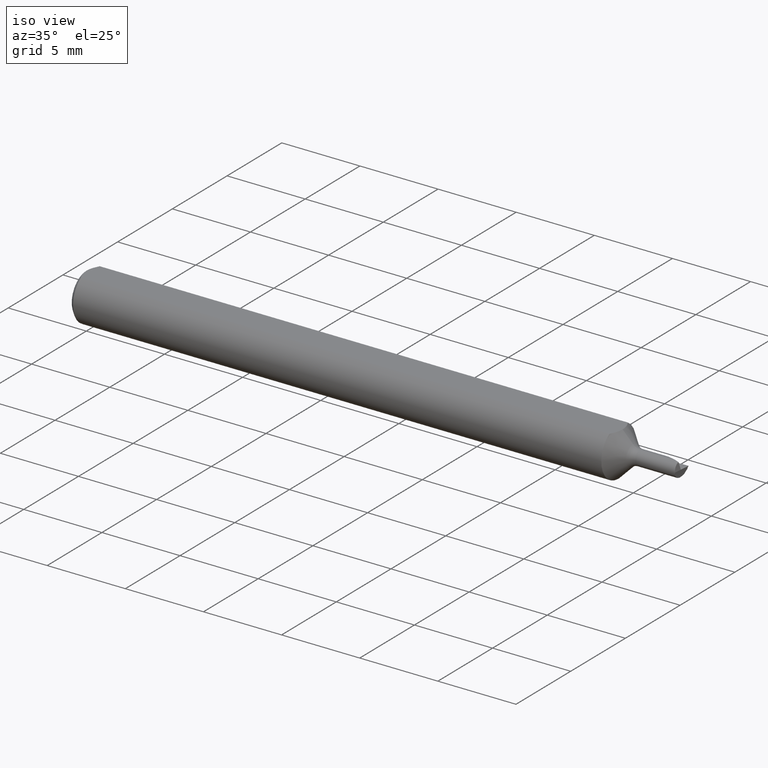
[diagram: clean part render]
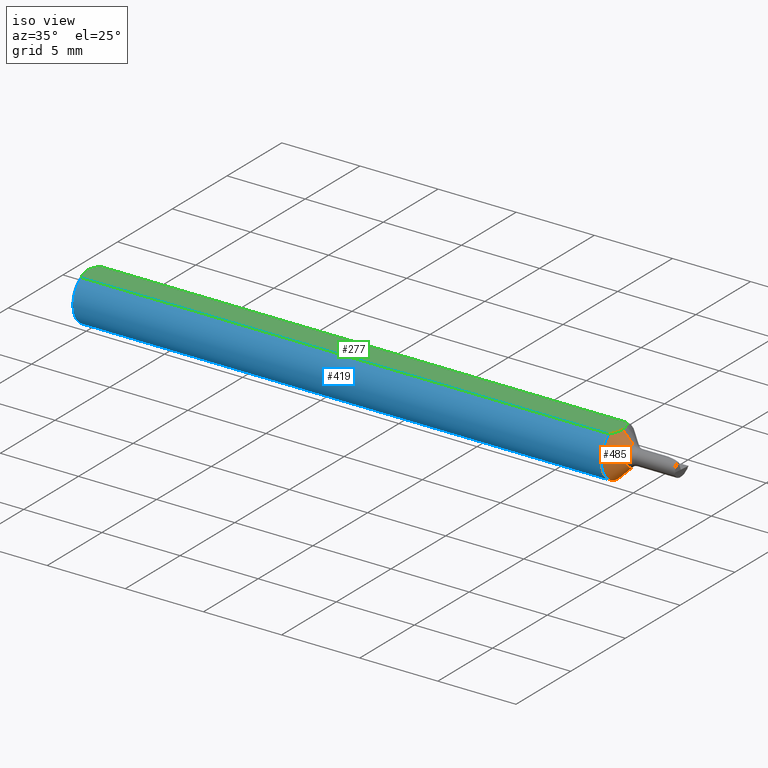
[diagram: same view with three faces highlighted in distinct colors, each labeled with its STEP entity id]
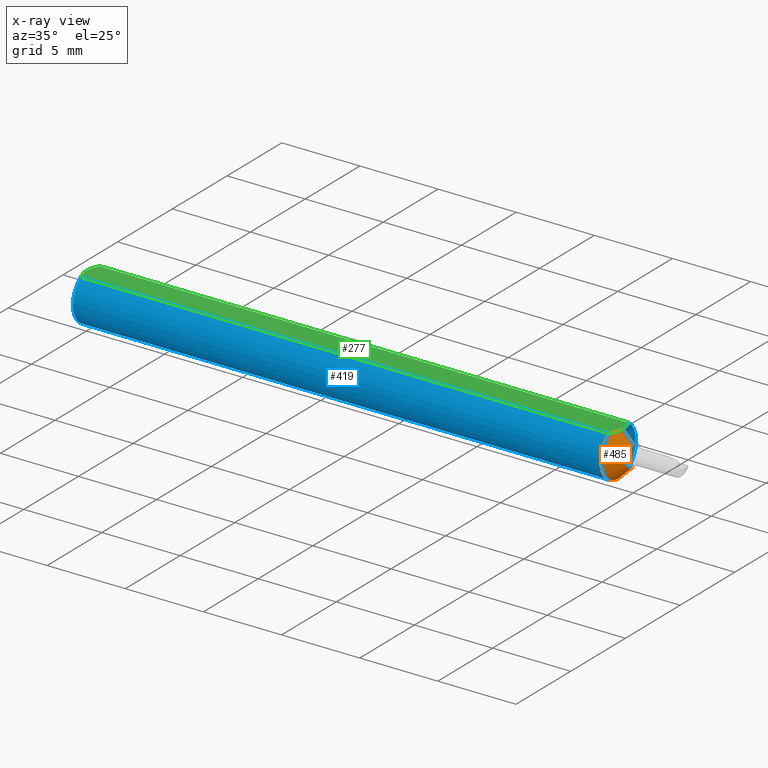
[diagram: x-ray of the same camera — body ghosted, the three highlighted faces saturated]
A machine part, iso view with three faces highlighted in distinct colors.
The next image is the same camera in x-ray (body ghosted, the three faces saturated) — at least one of them is partly hidden behind the body in this view.
Their STEP definitions:

[orange] entity #485 — the highlighted conical surface has half-angle 45 deg.
#26 = EDGE_CURVE ( 'NONE', #545, #393, #606, .T. ) ;
#39 = DIRECTION ( 'NONE',  ( 0.000000000000000000, 0.000000000000000000, 1.000000000000000000 ) ) ;
#40 = EDGE_CURVE ( 'NONE', #224, #44, #548, .T. ) ;
#44 = VERTEX_POINT ( 'NONE', #354 ) ;
#53 = DIRECTION ( 'NONE',  ( -1.000000000000000000, -0.000000000000000000, -0.000000000000000000 ) ) ;
#55 = CARTESIAN_POINT ( 'NONE',  ( 1.351150000000000073, -1.477724559795570125E-21, 0.05235000000000001458 ) ) ;
#65 = DIRECTION ( 'NONE',  ( 0.000000000000000000, 0.000000000000000000, 1.000000000000000000 ) ) ;
#69 = DIRECTION ( 'NONE',  ( -1.000000000000000000, -0.000000000000000000, -0.000000000000000000 ) ) ;
#73 = CONICAL_SURFACE ( 'NONE', #239, 0.02582233047033637499, 0.7853981633974507215 ) ;
#83 = EDGE_CURVE ( 'NONE', #224, #545, #436, .T. ) ;
#84 = CARTESIAN_POINT ( 'NONE',  ( 1.377677669529663751, 0.000000000000000000, 0.02582233047033637152 ) ) ;
#113 = ORIENTED_EDGE ( 'NONE', *, *, #488, .T. ) ;
#139 = AXIS2_PLACEMENT_3D ( 'NONE', #278, #480, #39 ) ;
#154 = CARTESIAN_POINT ( 'NONE',  ( 1.350078879331740422, -0.01191647624495715749, 0.05235000000000002152 ) ) ;
#158 = DIRECTION ( 'NONE',  ( -0.7071067811865457964, 8.659560562354953812E-17, -0.7071067811865492381 ) ) ;
#166 = CARTESIAN_POINT ( 'NONE',  ( 1.377677669529663751, 3.162323435702260084E-18, -0.02582233047033637152 ) ) ;
#178 = ORIENTED_EDGE ( 'NONE', *, *, #40, .F. ) ;
#189 = ORIENTED_EDGE ( 'NONE', *, *, #83, .T. ) ;
#207 = VECTOR ( 'NONE', #345, 39.37007874015748143 ) ;
#214 = DIRECTION ( 'NONE',  ( 0.000000000000000000, 0.000000000000000000, 1.000000000000000000 ) ) ;
#224 = VERTEX_POINT ( 'NONE', #166 ) ;
#239 = AXIS2_PLACEMENT_3D ( 'NONE', #513, #53, #65 ) ;
#250 = CARTESIAN_POINT ( 'NONE',  ( 1.344001488371463049, -0.02861778674340261300, 0.05235000000000002152 ) ) ;
#257 = CARTESIAN_POINT ( 'NONE',  ( 1.351150000000000073, -1.477724559795570125E-21, 0.05235000000000001458 ) ) ;
#278 = CARTESIAN_POINT ( 'NONE',  ( 1.341150000000000286, 0.000000000000000000, 0.000000000000000000 ) ) ;
#285 = VECTOR ( 'NONE', #158, 39.37007874015748143 ) ;
#288 = B_SPLINE_CURVE_WITH_KNOTS ( 'NONE', 3,
 ( #257, #457, #154, #503, #250, #451 ),
 .UNSPECIFIED., .F., .F.,
 ( 4, 2, 4 ),
 ( 0.002916663230282859516, 0.003365861382119317465, 0.003815059533955774979 ),
 .UNSPECIFIED. ) ;
#298 = CARTESIAN_POINT ( 'NONE',  ( 1.377677669529663751, 3.162323435702260854E-18, -0.02582233047033637499 ) ) ;
#345 = DIRECTION ( 'NONE',  ( -0.7071067811865457964, 0.000000000000000000, 0.7071067811865492381 ) ) ;
#346 = EDGE_CURVE ( 'NONE', #44, #378, #417, .T. ) ;
#354 = CARTESIAN_POINT ( 'NONE',  ( 1.341150000000000286, 7.635672792683746671E-18, -0.06235000000000000264 ) ) ;
#373 = AXIS2_PLACEMENT_3D ( 'NONE', #619, #69, #214 ) ;
#378 = VERTEX_POINT ( 'NONE', #551 ) ;
#393 = VERTEX_POINT ( 'NONE', #55 ) ;
#399 = FACE_OUTER_BOUND ( 'NONE', #537, .T. ) ;
#417 = CIRCLE ( 'NONE', #139, 0.06235000000000000264 ) ;
#436 = CIRCLE ( 'NONE', #373, 0.02582233047033637499 ) ;
#451 = CARTESIAN_POINT ( 'NONE',  ( 1.341150000000000286, -0.03386738844375220686, 0.05235000000000000070 ) ) ;
#457 = CARTESIAN_POINT ( 'NONE',  ( 1.351150000000000073, -0.005924734429433297159, 0.05235000000000002152 ) ) ;
#480 = DIRECTION ( 'NONE',  ( -1.000000000000000000, -0.000000000000000000, -0.000000000000000000 ) ) ;
#485 = ADVANCED_FACE ( 'NONE', ( #399 ), #73, .T. ) ;
#488 = EDGE_CURVE ( 'NONE', #393, #378, #288, .T. ) ;
#496 = CARTESIAN_POINT ( 'NONE',  ( 1.377677669529663751, 0.000000000000000000, 0.02582233047033637499 ) ) ;
#503 = CARTESIAN_POINT ( 'NONE',  ( 1.346482645487523833, -0.02321992653401851181, 0.05235000000000001458 ) ) ;
#513 = CARTESIAN_POINT ( 'NONE',  ( 1.377677669529663751, 0.000000000000000000, 0.000000000000000000 ) ) ;
#537 = EDGE_LOOP ( 'NONE', ( #178, #189, #594, #113, #547 ) ) ;
#545 = VERTEX_POINT ( 'NONE', #84 ) ;
#547 = ORIENTED_EDGE ( 'NONE', *, *, #346, .F. ) ;
#548 = LINE ( 'NONE', #298, #285 ) ;
#551 = CARTESIAN_POINT ( 'NONE',  ( 1.341150000000000286, -0.03386738844375220686, 0.05235000000000000070 ) ) ;
#594 = ORIENTED_EDGE ( 'NONE', *, *, #26, .T. ) ;
#606 = LINE ( 'NONE', #496, #207 ) ;
#619 = CARTESIAN_POINT ( 'NONE',  ( 1.377677669529663751, 0.000000000000000000, 0.000000000000000000 ) ) ;

[blue] entity #419 — the highlighted cylindrical surface (edge-blend (fillet) strip) has radius 1.5837 mm, axis along (-1, -0, -0).
#16 = CARTESIAN_POINT ( 'NONE',  ( 0.01000000000000853331, -0.03386738844395138087, 0.05235000000000001458 ) ) ;
#39 = DIRECTION ( 'NONE',  ( 0.000000000000000000, 0.000000000000000000, 1.000000000000000000 ) ) ;
#42 = AXIS2_PLACEMENT_3D ( 'NONE', #260, #456, #460 ) ;
#44 = VERTEX_POINT ( 'NONE', #354 ) ;
#46 = VERTEX_POINT ( 'NONE', #116 ) ;
#50 = CYLINDRICAL_SURFACE ( 'NONE', #434, 0.06235000000000000264 ) ;
#56 = EDGE_CURVE ( 'NONE', #160, #46, #264, .T. ) ;
#72 = ORIENTED_EDGE ( 'NONE', *, *, #109, .T. ) ;
#74 = AXIS2_PLACEMENT_3D ( 'NONE', #446, #197, #370 ) ;
#79 = VERTEX_POINT ( 'NONE', #170 ) ;
#88 = AXIS2_PLACEMENT_3D ( 'NONE', #566, #131, #266 ) ;
#89 = CARTESIAN_POINT ( 'NONE',  ( 1.341150000000000286, 0.03386738844375220686, 0.05235000000000000070 ) ) ;
#109 = EDGE_CURVE ( 'NONE', #327, #44, #415, .T. ) ;
#111 = DIRECTION ( 'NONE',  ( -1.000000000000000000, -0.000000000000000000, -0.000000000000000000 ) ) ;
#116 = CARTESIAN_POINT ( 'NONE',  ( 0.01000000000000001582, 0.000000000000000000, -0.06235000000000000264 ) ) ;
#131 = DIRECTION ( 'NONE',  ( -1.000000000000000000, -0.000000000000000000, -0.000000000000000000 ) ) ;
#139 = AXIS2_PLACEMENT_3D ( 'NONE', #278, #480, #39 ) ;
#145 = CARTESIAN_POINT ( 'NONE',  ( 0.000000000000000000, 0.000000000000000000, 0.000000000000000000 ) ) ;
#160 = VERTEX_POINT ( 'NONE', #16 ) ;
#162 = EDGE_CURVE ( 'NONE', #46, #79, #297, .T. ) ;
#170 = CARTESIAN_POINT ( 'NONE',  ( 0.01000000000000001929, 0.03386738844375217911, 0.05235000000000001458 ) ) ;
#197 = DIRECTION ( 'NONE',  ( 1.000000000000000000, 0.000000000000000000, 0.000000000000000000 ) ) ;
#208 = EDGE_CURVE ( 'NONE', #79, #327, #258, .T. ) ;
#212 = CARTESIAN_POINT ( 'NONE',  ( 0.000000000000000000, 0.03386738844375220686, 0.05235000000000000070 ) ) ;
#227 = EDGE_CURVE ( 'NONE', #378, #160, #517, .T. ) ;
#258 = LINE ( 'NONE', #212, #448 ) ;
#260 = CARTESIAN_POINT ( 'NONE',  ( 0.01000000000000001582, 0.000000000000000000, 0.000000000000000000 ) ) ;
#264 = CIRCLE ( 'NONE', #74, 0.06235000000000000264 ) ;
#266 = DIRECTION ( 'NONE',  ( 0.000000000000000000, 0.000000000000000000, 1.000000000000000000 ) ) ;
#278 = CARTESIAN_POINT ( 'NONE',  ( 1.341150000000000286, 0.000000000000000000, 0.000000000000000000 ) ) ;
#297 = CIRCLE ( 'NONE', #42, 0.06235000000000000264 ) ;
#302 = EDGE_LOOP ( 'NONE', ( #72, #478, #633, #543, #641, #576 ) ) ;
#327 = VERTEX_POINT ( 'NONE', #89 ) ;
#346 = EDGE_CURVE ( 'NONE', #44, #378, #417, .T. ) ;
#354 = CARTESIAN_POINT ( 'NONE',  ( 1.341150000000000286, 7.635672792683746671E-18, -0.06235000000000000264 ) ) ;
#366 = CARTESIAN_POINT ( 'NONE',  ( 0.000000000000000000, -0.03386738844375220686, 0.05235000000000000070 ) ) ;
#370 = DIRECTION ( 'NONE',  ( 0.000000000000000000, 0.000000000000000000, -1.000000000000000000 ) ) ;
#378 = VERTEX_POINT ( 'NONE', #551 ) ;
#415 = CIRCLE ( 'NONE', #88, 0.06235000000000000264 ) ;
#417 = CIRCLE ( 'NONE', #139, 0.06235000000000000264 ) ;
#419 = ADVANCED_FACE ( 'NONE', ( #645 ), #50, .T. ) ;
#433 = DIRECTION ( 'NONE',  ( -1.000000000000000000, -0.000000000000000000, -0.000000000000000000 ) ) ;
#434 = AXIS2_PLACEMENT_3D ( 'NONE', #145, #111, #491 ) ;
#446 = CARTESIAN_POINT ( 'NONE',  ( 0.01000000000000001582, 0.000000000000000000, 0.000000000000000000 ) ) ;
#448 = VECTOR ( 'NONE', #612, 39.37007874015748143 ) ;
#456 = DIRECTION ( 'NONE',  ( 1.000000000000000000, 0.000000000000000000, 0.000000000000000000 ) ) ;
#460 = DIRECTION ( 'NONE',  ( 0.000000000000000000, 0.000000000000000000, -1.000000000000000000 ) ) ;
#478 = ORIENTED_EDGE ( 'NONE', *, *, #346, .T. ) ;
#480 = DIRECTION ( 'NONE',  ( -1.000000000000000000, -0.000000000000000000, -0.000000000000000000 ) ) ;
#491 = DIRECTION ( 'NONE',  ( 0.000000000000000000, 0.000000000000000000, 1.000000000000000000 ) ) ;
#500 = VECTOR ( 'NONE', #433, 39.37007874015748143 ) ;
#517 = LINE ( 'NONE', #366, #500 ) ;
#543 = ORIENTED_EDGE ( 'NONE', *, *, #56, .T. ) ;
#551 = CARTESIAN_POINT ( 'NONE',  ( 1.341150000000000286, -0.03386738844375220686, 0.05235000000000000070 ) ) ;
#566 = CARTESIAN_POINT ( 'NONE',  ( 1.341150000000000286, 0.000000000000000000, 0.000000000000000000 ) ) ;
#576 = ORIENTED_EDGE ( 'NONE', *, *, #208, .T. ) ;
#612 = DIRECTION ( 'NONE',  ( 1.000000000000000000, 0.000000000000000000, 0.000000000000000000 ) ) ;
#633 = ORIENTED_EDGE ( 'NONE', *, *, #227, .T. ) ;
#641 = ORIENTED_EDGE ( 'NONE', *, *, #162, .T. ) ;
#645 = FACE_OUTER_BOUND ( 'NONE', #302, .T. ) ;

[green] entity #277 — the highlighted planar face has unit normal (0, 0, -1).
#9 = B_SPLINE_CURVE_WITH_KNOTS ( 'NONE', 3,
 ( #430, #140, #326, #274, #586, #85 ),
 .UNSPECIFIED., .F., .F.,
 ( 4, 2, 4 ),
 ( 0.0009229516234079832016, 0.001371626545108144309, 0.001820301466808305416 ),
 .UNSPECIFIED. ) ;
#16 = CARTESIAN_POINT ( 'NONE',  ( 0.01000000000000853331, -0.03386738844395138087, 0.05235000000000001458 ) ) ;
#21 = CARTESIAN_POINT ( 'NONE',  ( 0.000000000000000000, 0.000000000000000000, 0.05235000000000005621 ) ) ;
#55 = CARTESIAN_POINT ( 'NONE',  ( 1.351150000000000073, -1.477724559795570125E-21, 0.05235000000000001458 ) ) ;
#79 = VERTEX_POINT ( 'NONE', #170 ) ;
#80 = CARTESIAN_POINT ( 'NONE',  ( 0.004679365186825881588, -0.02325953974091120660, 0.05235000000000001458 ) ) ;
#81 = CARTESIAN_POINT ( 'NONE',  ( 1.346488788636946765, 0.02320328458619742157, 0.05235000000000002152 ) ) ;
#85 = CARTESIAN_POINT ( 'NONE',  ( 0.000000000000000000, 0.000000000000000000, 0.05235000000000005621 ) ) ;
#89 = CARTESIAN_POINT ( 'NONE',  ( 1.341150000000000286, 0.03386738844375220686, 0.05235000000000000070 ) ) ;
#95 = VERTEX_POINT ( 'NONE', #569 ) ;
#97 = CARTESIAN_POINT ( 'NONE',  ( 1.351150000000000073, -1.477724559795570125E-21, 0.05235000000000001458 ) ) ;
#124 = ORIENTED_EDGE ( 'NONE', *, *, #236, .T. ) ;
#140 = CARTESIAN_POINT ( 'NONE',  ( 0.007185421074056361733, 0.02868573718286557273, 0.05235000000000002152 ) ) ;
#143 = EDGE_LOOP ( 'NONE', ( #206, #124, #638, #251, #229, #310 ) ) ;
#154 = CARTESIAN_POINT ( 'NONE',  ( 1.350078879331740422, -0.01191647624495715749, 0.05235000000000002152 ) ) ;
#160 = VERTEX_POINT ( 'NONE', #16 ) ;
#164 = B_SPLINE_CURVE_WITH_KNOTS ( 'NONE', 3,
 ( #21, #521, #220, #80, #322, #525 ),
 .UNSPECIFIED., .F., .F.,
 ( 4, 2, 4 ),
 ( 0.001820301466808305416, 0.002269751589840578697, 0.002719201712872851978 ),
 .UNSPECIFIED. ) ;
#170 = CARTESIAN_POINT ( 'NONE',  ( 0.01000000000000001929, 0.03386738844375217911, 0.05235000000000001458 ) ) ;
#180 = FACE_OUTER_BOUND ( 'NONE', #143, .T. ) ;
#206 = ORIENTED_EDGE ( 'NONE', *, *, #208, .F. ) ;
#208 = EDGE_CURVE ( 'NONE', #79, #327, #258, .T. ) ;
#212 = CARTESIAN_POINT ( 'NONE',  ( 0.000000000000000000, 0.03386738844375220686, 0.05235000000000000070 ) ) ;
#220 = CARTESIAN_POINT ( 'NONE',  ( 0.001055043921644817405, -0.01186408073217191071, 0.05235000000000002152 ) ) ;
#227 = EDGE_CURVE ( 'NONE', #378, #160, #517, .T. ) ;
#228 = CARTESIAN_POINT ( 'NONE',  ( 1.500000000000000222, 0.06235000000000000264, 0.05235000000000001458 ) ) ;
#229 = ORIENTED_EDGE ( 'NONE', *, *, #488, .F. ) ;
#236 = EDGE_CURVE ( 'NONE', #79, #95, #9, .T. ) ;
#250 = CARTESIAN_POINT ( 'NONE',  ( 1.344001488371463049, -0.02861778674340261300, 0.05235000000000002152 ) ) ;
#251 = ORIENTED_EDGE ( 'NONE', *, *, #227, .F. ) ;
#257 = CARTESIAN_POINT ( 'NONE',  ( 1.351150000000000073, -1.477724559795570125E-21, 0.05235000000000001458 ) ) ;
#258 = LINE ( 'NONE', #212, #448 ) ;
#274 = CARTESIAN_POINT ( 'NONE',  ( 0.001063697276021621741, 0.01189177144351693215, 0.05235000000000001458 ) ) ;
#277 = ADVANCED_FACE ( 'NONE', ( #180 ), #474, .F. ) ;
#281 = EDGE_CURVE ( 'NONE', #327, #393, #607, .T. ) ;
#288 = B_SPLINE_CURVE_WITH_KNOTS ( 'NONE', 3,
 ( #257, #457, #154, #503, #250, #451 ),
 .UNSPECIFIED., .F., .F.,
 ( 4, 2, 4 ),
 ( 0.002916663230282859516, 0.003365861382119317465, 0.003815059533955774979 ),
 .UNSPECIFIED. ) ;
#310 = ORIENTED_EDGE ( 'NONE', *, *, #281, .F. ) ;
#318 = AXIS2_PLACEMENT_3D ( 'NONE', #228, #377, #626 ) ;
#322 = CARTESIAN_POINT ( 'NONE',  ( 0.007163450771416337952, -0.02864528976632486554, 0.05235000000000002152 ) ) ;
#326 = CARTESIAN_POINT ( 'NONE',  ( 0.004671770759546966557, 0.02323517832780101766, 0.05235000000000002152 ) ) ;
#327 = VERTEX_POINT ( 'NONE', #89 ) ;
#366 = CARTESIAN_POINT ( 'NONE',  ( 0.000000000000000000, -0.03386738844375220686, 0.05235000000000000070 ) ) ;
#377 = DIRECTION ( 'NONE',  ( 0.000000000000000000, 0.000000000000000000, -1.000000000000000000 ) ) ;
#378 = VERTEX_POINT ( 'NONE', #551 ) ;
#380 = CARTESIAN_POINT ( 'NONE',  ( 1.351150000000000073, 0.005920815533600997868, 0.05235000000000002152 ) ) ;
#384 = CARTESIAN_POINT ( 'NONE',  ( 1.350078615661969073, 0.01191463382135339415, 0.05235000000000001458 ) ) ;
#393 = VERTEX_POINT ( 'NONE', #55 ) ;
#430 = CARTESIAN_POINT ( 'NONE',  ( 0.01000000000000001929, 0.03386738844375217911, 0.05235000000000001458 ) ) ;
#433 = DIRECTION ( 'NONE',  ( -1.000000000000000000, -0.000000000000000000, -0.000000000000000000 ) ) ;
#448 = VECTOR ( 'NONE', #612, 39.37007874015748143 ) ;
#451 = CARTESIAN_POINT ( 'NONE',  ( 1.341150000000000286, -0.03386738844375220686, 0.05235000000000000070 ) ) ;
#457 = CARTESIAN_POINT ( 'NONE',  ( 1.351150000000000073, -0.005924734429433297159, 0.05235000000000002152 ) ) ;
#474 = PLANE ( 'NONE',  #318 ) ;
#488 = EDGE_CURVE ( 'NONE', #393, #378, #288, .T. ) ;
#500 = VECTOR ( 'NONE', #433, 39.37007874015748143 ) ;
#503 = CARTESIAN_POINT ( 'NONE',  ( 1.346482645487523833, -0.02321992653401851181, 0.05235000000000001458 ) ) ;
#517 = LINE ( 'NONE', #366, #500 ) ;
#521 = CARTESIAN_POINT ( 'NONE',  ( -8.005211676014286058E-16, -0.005965286321711137096, 0.05235000000000002152 ) ) ;
#525 = CARTESIAN_POINT ( 'NONE',  ( 0.01000000000000853331, -0.03386738844395138087, 0.05235000000000001458 ) ) ;
#539 = CARTESIAN_POINT ( 'NONE',  ( 1.343992034642578215, 0.02863519109676607513, 0.05235000000000002152 ) ) ;
#551 = CARTESIAN_POINT ( 'NONE',  ( 1.341150000000000286, -0.03386738844375220686, 0.05235000000000000070 ) ) ;
#556 = EDGE_CURVE ( 'NONE', #95, #160, #164, .T. ) ;
#569 = CARTESIAN_POINT ( 'NONE',  ( 0.000000000000000000, 0.000000000000000000, 0.05235000000000005621 ) ) ;
#586 = CARTESIAN_POINT ( 'NONE',  ( -8.229892167436566619E-16, 0.005954997531773978219, 0.05235000000000002152 ) ) ;
#607 = B_SPLINE_CURVE_WITH_KNOTS ( 'NONE', 3,
 ( #629, #539, #81, #384, #380, #97 ),
 .UNSPECIFIED., .F., .F.,
 ( 4, 2, 4 ),
 ( 0.002018861167849301565, 0.002467762199066080540, 0.002916663230282859516 ),
 .UNSPECIFIED. ) ;
#612 = DIRECTION ( 'NONE',  ( 1.000000000000000000, 0.000000000000000000, 0.000000000000000000 ) ) ;
#626 = DIRECTION ( 'NONE',  ( -1.000000000000000000, 0.000000000000000000, -0.000000000000000000 ) ) ;
#629 = CARTESIAN_POINT ( 'NONE',  ( 1.341150000000000286, 0.03386738844375220686, 0.05235000000000000070 ) ) ;
#638 = ORIENTED_EDGE ( 'NONE', *, *, #556, .T. ) ;